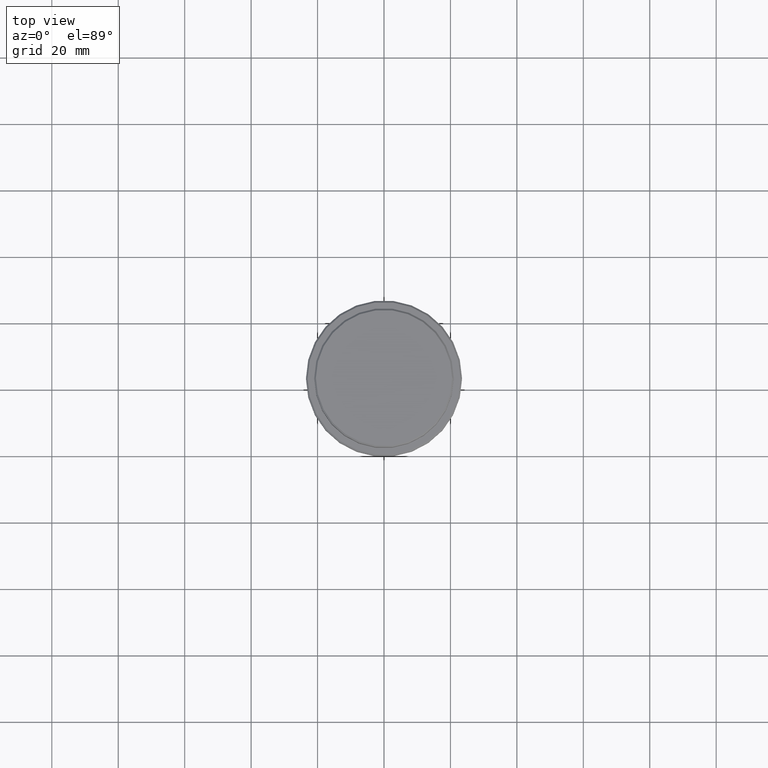
[diagram: clean part render]
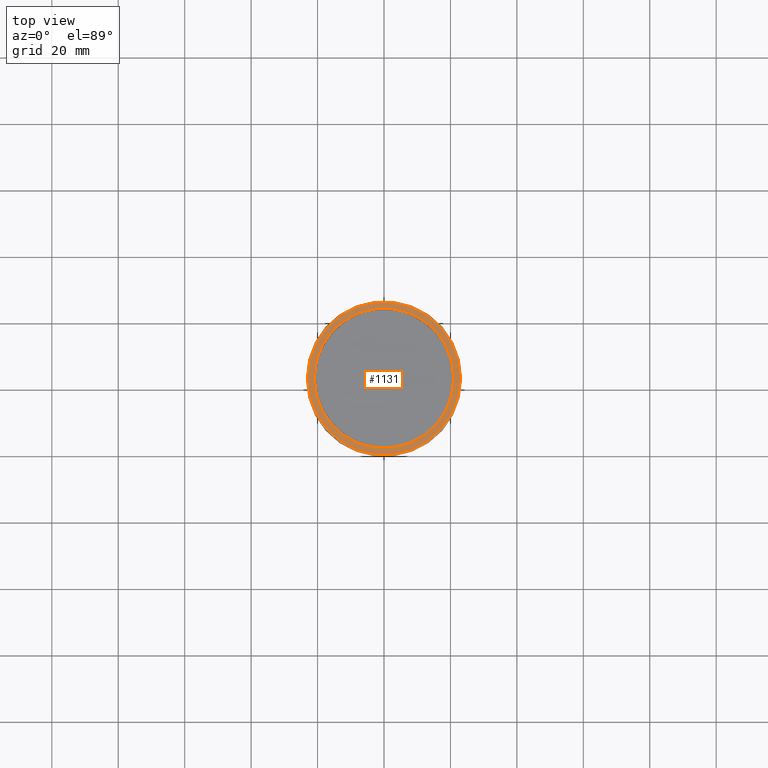
[diagram: same view with one face highlighted and labeled with its STEP entity id]
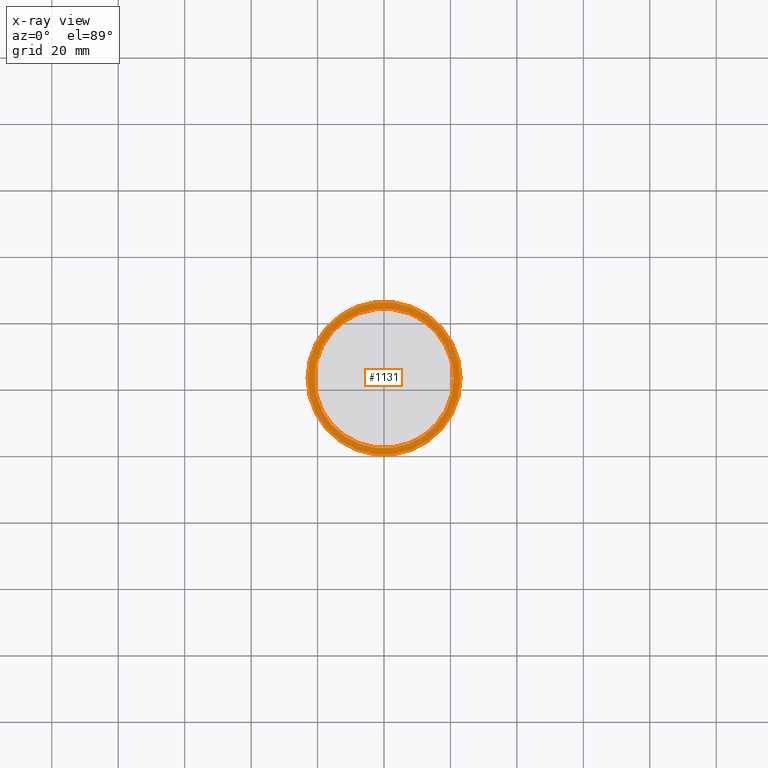
[diagram: x-ray of the same camera — body ghosted, the highlighted face saturated]
A machine part, top view. The second image highlights one B-rep face of the part: STEP entity #1131.
The next image is the same camera in x-ray: the body ghosted, the highlighted face saturated — about 0% of this face is hidden behind the body in this view.
In plain terms, the highlighted planar face has unit normal (0, -0, 1).
Its self-contained STEP definition (entity closure, byte-faithful):
#66 = FACE_OUTER_BOUND ( 'NONE', #1268, .T. ) ;
#69 = CARTESIAN_POINT ( 'NONE',  ( -20.99999999999999289, 2.571758278209440872E-15, -9.000000000000000000 ) ) ;
#104 = DIRECTION ( 'NONE',  ( 1.000000000000000000, 0.000000000000000000, 0.000000000000000000 ) ) ;
#115 = ORIENTED_EDGE ( 'NONE', *, *, #813, .T. ) ;
#137 = CARTESIAN_POINT ( 'NONE',  ( 0.000000000000000000, 0.000000000000000000, -9.000000000000000000 ) ) ;
#158 = AXIS2_PLACEMENT_3D ( 'NONE', #1083, #433, #104 ) ;
#183 = EDGE_LOOP ( 'NONE', ( #115, #740 ) ) ;
#198 = VERTEX_POINT ( 'NONE', #455 ) ;
#223 = ORIENTED_EDGE ( 'NONE', *, *, #1109, .T. ) ;
#250 = AXIS2_PLACEMENT_3D ( 'NONE', #137, #699, #493 ) ;
#282 = DIRECTION ( 'NONE',  ( 1.000000000000000000, 0.000000000000000000, 0.000000000000000000 ) ) ;
#284 = CARTESIAN_POINT ( 'NONE',  ( 23.00000000000002487, 2.847303808017597717E-15, -9.000000000000000000 ) ) ;
#368 = AXIS2_PLACEMENT_3D ( 'NONE', #637, #1369, #741 ) ;
#388 = VERTEX_POINT ( 'NONE', #461 ) ;
#411 = DIRECTION ( 'NONE',  ( 0.000000000000000000, 0.000000000000000000, -1.000000000000000000 ) ) ;
#433 = DIRECTION ( 'NONE',  ( 0.000000000000000000, 0.000000000000000000, -1.000000000000000000 ) ) ;
#455 = CARTESIAN_POINT ( 'NONE',  ( -23.00000000000002487, 0.000000000000000000, -9.000000000000000000 ) ) ;
#461 = CARTESIAN_POINT ( 'NONE',  ( 20.99999999999999289, 0.000000000000000000, -9.000000000000000000 ) ) ;
#493 = DIRECTION ( 'NONE',  ( 1.000000000000000000, 0.000000000000000000, 0.000000000000000000 ) ) ;
#510 = DIRECTION ( 'NONE',  ( 0.000000000000000000, -0.000000000000000000, 1.000000000000000000 ) ) ;
#548 = CIRCLE ( 'NONE', #250, 23.00000000000002487 ) ;
#581 = VERTEX_POINT ( 'NONE', #284 ) ;
#595 = CIRCLE ( 'NONE', #822, 20.99999999999999289 ) ;
#637 = CARTESIAN_POINT ( 'NONE',  ( 0.000000000000000000, 0.000000000000000000, -9.000000000000000000 ) ) ;
#699 = DIRECTION ( 'NONE',  ( -0.000000000000000000, -0.000000000000000000, 1.000000000000000000 ) ) ;
#726 = VERTEX_POINT ( 'NONE', #69 ) ;
#731 = CARTESIAN_POINT ( 'NONE',  ( 0.000000000000000000, 0.000000000000000000, -9.000000000000000000 ) ) ;
#740 = ORIENTED_EDGE ( 'NONE', *, *, #1386, .T. ) ;
#741 = DIRECTION ( 'NONE',  ( 1.000000000000000000, 0.000000000000000000, 0.000000000000000000 ) ) ;
#803 = ORIENTED_EDGE ( 'NONE', *, *, #989, .T. ) ;
#813 = EDGE_CURVE ( 'NONE', #388, #726, #911, .T. ) ;
#822 = AXIS2_PLACEMENT_3D ( 'NONE', #731, #411, #1176 ) ;
#833 = FACE_BOUND ( 'NONE', #183, .T. ) ;
#911 = CIRCLE ( 'NONE', #158, 20.99999999999999289 ) ;
#975 = CIRCLE ( 'NONE', #368, 23.00000000000002487 ) ;
#989 = EDGE_CURVE ( 'NONE', #581, #198, #548, .T. ) ;
#1083 = CARTESIAN_POINT ( 'NONE',  ( 0.000000000000000000, 0.000000000000000000, -9.000000000000000000 ) ) ;
#1109 = EDGE_CURVE ( 'NONE', #198, #581, #975, .T. ) ;
#1131 = ADVANCED_FACE ( 'NONE', ( #66, #833 ), #1149, .T. ) ;
#1149 = PLANE ( 'NONE',  #1413 ) ;
#1176 = DIRECTION ( 'NONE',  ( 1.000000000000000000, 0.000000000000000000, 0.000000000000000000 ) ) ;
#1268 = EDGE_LOOP ( 'NONE', ( #223, #803 ) ) ;
#1269 = CARTESIAN_POINT ( 'NONE',  ( 0.000000000000000000, 20.49999999999999645, -9.000000000000000000 ) ) ;
#1369 = DIRECTION ( 'NONE',  ( -0.000000000000000000, -0.000000000000000000, 1.000000000000000000 ) ) ;
#1386 = EDGE_CURVE ( 'NONE', #726, #388, #595, .T. ) ;
#1413 = AXIS2_PLACEMENT_3D ( 'NONE', #1269, #510, #282 ) ;